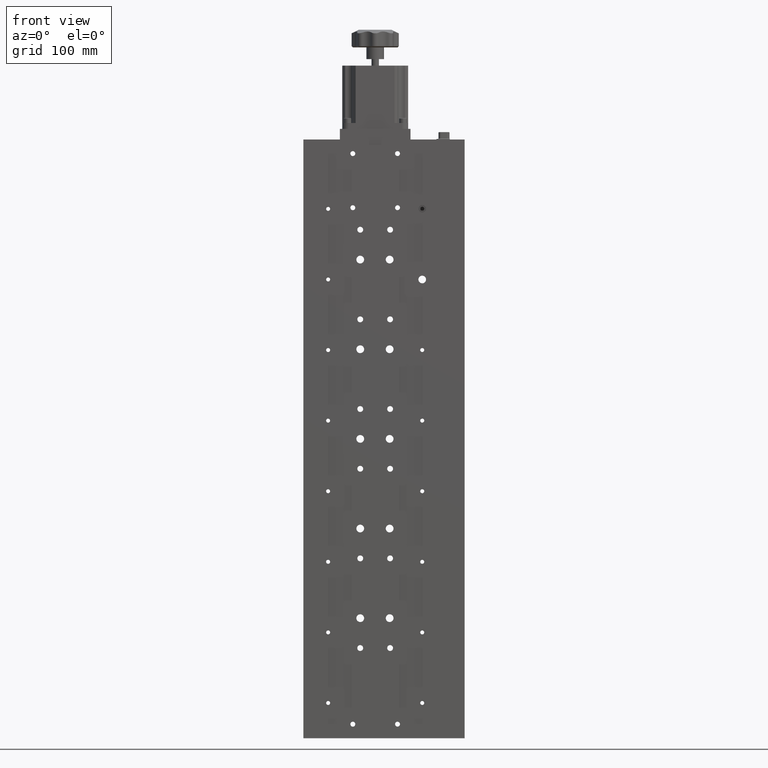
[diagram: clean part render]
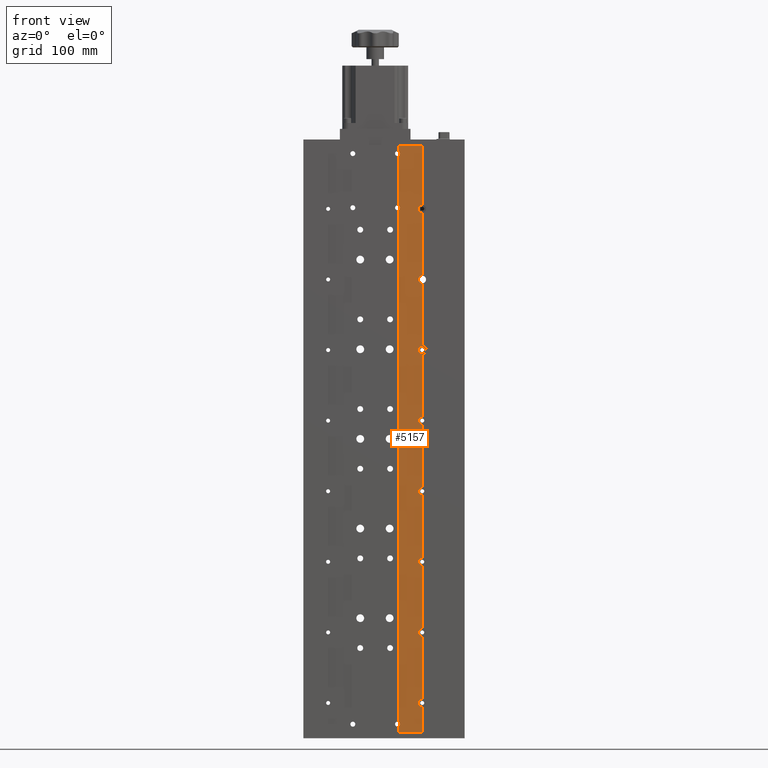
[diagram: same view with one face highlighted and labeled with its STEP entity id]
A machine part, front view. The second image highlights one B-rep face of the part: STEP entity #5157.
In plain terms, the highlighted planar face has unit normal (-0, 1, 0).
Its self-contained STEP definition (entity closure, byte-faithful):
#75 = ORIENTED_EDGE ( 'NONE', *, *, #36849, .T. ) ;
#194 = ORIENTED_EDGE ( 'NONE', *, *, #3482, .F. ) ;
#891 = CARTESIAN_POINT ( 'NONE',  ( 29.38919164396006100, -8.917650620647958000, 192.2500000000000000 ) ) ;
#1083 = DIRECTION ( 'NONE',  ( 0.0000000000000000000, 0.0000000000000000000, -1.000000000000000000 ) ) ;
#1180 = EDGE_CURVE ( 'NONE', #26167, #33218, #40847, .T. ) ;
#1294 = DIRECTION ( 'NONE',  ( 0.0000000000000000000, 0.0000000000000000000, -1.000000000000000000 ) ) ;
#1434 = ORIENTED_EDGE ( 'NONE', *, *, #11264, .T. ) ;
#1570 = EDGE_CURVE ( 'NONE', #35505, #6828, #2548, .T. ) ;
#1645 = ORIENTED_EDGE ( 'NONE', *, *, #17003, .F. ) ;
#1783 = VERTEX_POINT ( 'NONE', #25481 ) ;
#2277 = DIRECTION ( 'NONE',  ( -3.689503073101875900E-032, 1.000000000000000000, 0.0000000000000000000 ) ) ;
#2376 = DIRECTION ( 'NONE',  ( -3.689503073101875900E-032, 1.000000000000000000, 0.0000000000000000000 ) ) ;
#2548 = LINE ( 'NONE', #30885, #18909 ) ;
#2803 = DIRECTION ( 'NONE',  ( 0.0000000000000000000, 0.0000000000000000000, 1.000000000000000000 ) ) ;
#2807 = CARTESIAN_POINT ( 'NONE',  ( 29.38919164396006100, -8.917650620647959800, 249.5000000000000300 ) ) ;
#2820 = EDGE_CURVE ( 'NONE', #1783, #13179, #15696, .T. ) ;
#2909 = VERTEX_POINT ( 'NONE', #11464 ) ;
#2936 = CARTESIAN_POINT ( 'NONE',  ( 29.38919164395998600, -8.917650620647958000, 75.50000000000001400 ) ) ;
#3055 = CARTESIAN_POINT ( 'NONE',  ( 9.389191643960058900, -8.917650620647958000, 198.3466185312619800 ) ) ;
#3223 = CARTESIAN_POINT ( 'NONE',  ( 29.38919164396006100, -8.917650620647959800, 249.5000000000000300 ) ) ;
#3258 = CARTESIAN_POINT ( 'NONE',  ( 9.389191643960058900, -8.917650620647958000, 249.5000000000000600 ) ) ;
#3290 = VECTOR ( 'NONE', #39879, 1000.000000000000000 ) ;
#3482 = EDGE_CURVE ( 'NONE', #19112, #26167, #7911, .T. ) ;
#3705 = VECTOR ( 'NONE', #24495, 1000.000000000000000 ) ;
#3825 = PLANE ( 'NONE',  #12583 ) ;
#3964 = DIRECTION ( 'NONE',  ( -3.689503073101875900E-032, 1.000000000000000000, 0.0000000000000000000 ) ) ;
#4069 = AXIS2_PLACEMENT_3D ( 'NONE', #28992, #9453, #32235 ) ;
#4443 = CARTESIAN_POINT ( 'NONE',  ( 29.38919164396006100, -8.917650620647959800, 249.5000000000000300 ) ) ;
#4954 = DIRECTION ( 'NONE',  ( 0.0000000000000000000, 0.0000000000000000000, -1.000000000000000000 ) ) ;
#5101 = VECTOR ( 'NONE', #6492, 1000.000000000000000 ) ;
#5157 = ADVANCED_FACE ( 'NONE', ( #20844 ), #3825, .F. ) ;
#5226 = CARTESIAN_POINT ( 'NONE',  ( 29.38919164395998600, -8.917650620647958000, 135.5000000000000000 ) ) ;
#5464 = CARTESIAN_POINT ( 'NONE',  ( 9.389191643960062400, -8.917650620647958000, 244.3466185312619500 ) ) ;
#5482 = LINE ( 'NONE', #17381, #13140 ) ;
#5791 = DIRECTION ( 'NONE',  ( -3.689503073101875900E-032, 1.000000000000000000, 0.0000000000000000000 ) ) ;
#6129 = VERTEX_POINT ( 'NONE', #38226 ) ;
#6207 = DIRECTION ( 'NONE',  ( 0.0000000000000000000, 0.0000000000000000000, 1.000000000000000000 ) ) ;
#6490 = VERTEX_POINT ( 'NONE', #28863 ) ;
#6492 = DIRECTION ( 'NONE',  ( 0.0000000000000000000, 0.0000000000000000000, -1.000000000000000000 ) ) ;
#6828 = VERTEX_POINT ( 'NONE', #40754 ) ;
#7020 = AXIS2_PLACEMENT_3D ( 'NONE', #35965, #16486, #39246 ) ;
#7460 = ORIENTED_EDGE ( 'NONE', *, *, #2820, .T. ) ;
#7721 = CARTESIAN_POINT ( 'NONE',  ( -50.61080835603993900, -8.917650620647958000, -249.4999999999999700 ) ) ;
#7911 = LINE ( 'NONE', #26402, #15617 ) ;
#8202 = DIRECTION ( 'NONE',  ( 0.0000000000000000000, 0.0000000000000000000, -1.000000000000000000 ) ) ;
#8254 = VERTEX_POINT ( 'NONE', #30534 ) ;
#8263 = CARTESIAN_POINT ( 'NONE',  ( 29.38919164395998600, -8.917650620647959800, -44.49999999999999300 ) ) ;
#8497 = DIRECTION ( 'NONE',  ( 0.0000000000000000000, 0.0000000000000000000, 1.000000000000000000 ) ) ;
#8522 = LINE ( 'NONE', #41137, #16219 ) ;
#8606 = CIRCLE ( 'NONE', #22244, 2.099999999999990800 ) ;
#8871 = DIRECTION ( 'NONE',  ( 0.0000000000000000000, 0.0000000000000000000, 1.000000000000000000 ) ) ;
#9453 = DIRECTION ( 'NONE',  ( -3.689503073101875900E-032, 1.000000000000000000, 0.0000000000000000000 ) ) ;
#9624 = VECTOR ( 'NONE', #8871, 1000.000000000000000 ) ;
#10143 = DIRECTION ( 'NONE',  ( 1.000000000000000000, -3.689503073101735200E-032, 0.0000000000000000000 ) ) ;
#10581 = ORIENTED_EDGE ( 'NONE', *, *, #40405, .T. ) ;
#11264 = EDGE_CURVE ( 'NONE', #20368, #6828, #22625, .T. ) ;
#11464 = CARTESIAN_POINT ( 'NONE',  ( 29.38919164396006100, -8.917650620647959800, 132.2500000000000000 ) ) ;
#11581 = DIRECTION ( 'NONE',  ( 0.0000000000000000000, 0.0000000000000000000, 1.000000000000000000 ) ) ;
#11874 = ORIENTED_EDGE ( 'NONE', *, *, #1570, .F. ) ;
#12076 = VECTOR ( 'NONE', #41665, 1000.000000000000000 ) ;
#12146 = CARTESIAN_POINT ( 'NONE',  ( 29.38919164395998600, -8.917650620647959800, -224.4999999999999700 ) ) ;
#12450 = CARTESIAN_POINT ( 'NONE',  ( 29.38919164396006100, -8.917650620647959800, 249.5000000000000300 ) ) ;
#12583 = AXIS2_PLACEMENT_3D ( 'NONE', #23511, #3964, #26783 ) ;
#12764 = LINE ( 'NONE', #3223, #5101 ) ;
#12795 = CARTESIAN_POINT ( 'NONE',  ( 29.38919164396006100, -8.917650620647959800, -161.2499999999999700 ) ) ;
#12819 = VERTEX_POINT ( 'NONE', #42074 ) ;
#12880 = CARTESIAN_POINT ( 'NONE',  ( 29.38919164396006100, -8.917650620647959800, 249.5000000000000300 ) ) ;
#12913 = CARTESIAN_POINT ( 'NONE',  ( 29.38919164396006100, -8.917650620647958000, 12.25000000000001600 ) ) ;
#13140 = VECTOR ( 'NONE', #1083, 1000.000000000000000 ) ;
#13176 = LINE ( 'NONE', #12450, #29494 ) ;
#13179 = VERTEX_POINT ( 'NONE', #31072 ) ;
#13372 = AXIS2_PLACEMENT_3D ( 'NONE', #2936, #25742, #6207 ) ;
#13868 = VERTEX_POINT ( 'NONE', #5464 ) ;
#13947 = CARTESIAN_POINT ( 'NONE',  ( 29.38919164396006100, -8.917650620647959800, -101.2499999999999900 ) ) ;
#14133 = CARTESIAN_POINT ( 'NONE',  ( 29.38919164396006100, -8.917650620647959800, 198.7500000000000000 ) ) ;
#14217 = CARTESIAN_POINT ( 'NONE',  ( 8.389191643960057100, -8.917650620647959800, 196.5000000000000300 ) ) ;
#15164 = AXIS2_PLACEMENT_3D ( 'NONE', #12146, #34938, #15449 ) ;
#15423 = VERTEX_POINT ( 'NONE', #35398 ) ;
#15449 = DIRECTION ( 'NONE',  ( 0.0000000000000000000, 0.0000000000000000000, 1.000000000000000000 ) ) ;
#15617 = VECTOR ( 'NONE', #10143, 1000.000000000000000 ) ;
#15629 = VERTEX_POINT ( 'NONE', #30237 ) ;
#15649 = VERTEX_POINT ( 'NONE', #26971 ) ;
#15696 = LINE ( 'NONE', #7721, #24346 ) ;
#15892 = CARTESIAN_POINT ( 'NONE',  ( 29.38919164396006100, -8.917650620647958000, -47.74999999999998600 ) ) ;
#15971 = ORIENTED_EDGE ( 'NONE', *, *, #1180, .F. ) ;
#16219 = VECTOR ( 'NONE', #18406, 1000.000000000000000 ) ;
#16225 = VERTEX_POINT ( 'NONE', #13947 ) ;
#16375 = CIRCLE ( 'NONE', #24504, 3.250000000000002700 ) ;
#16481 = EDGE_CURVE ( 'NONE', #37645, #33218, #16375, .T. ) ;
#16486 = DIRECTION ( 'NONE',  ( -3.689503073101875900E-032, 1.000000000000000000, 0.0000000000000000000 ) ) ;
#16527 = EDGE_CURVE ( 'NONE', #12819, #16225, #20956, .T. ) ;
#16583 = EDGE_CURVE ( 'NONE', #22617, #13179, #12764, .T. ) ;
#16662 = VECTOR ( 'NONE', #1294, 1000.000000000000000 ) ;
#17003 = EDGE_CURVE ( 'NONE', #1783, #15649, #35614, .T. ) ;
#17072 = EDGE_CURVE ( 'NONE', #15423, #33042, #13176, .T. ) ;
#17116 = CARTESIAN_POINT ( 'NONE',  ( 9.389191643960058900, -8.917650620647958000, -289.5780488547034100 ) ) ;
#17341 = EDGE_CURVE ( 'NONE', #26721, #15629, #39835, .T. ) ;
#17381 = CARTESIAN_POINT ( 'NONE',  ( 29.38919164396006100, -8.917650620647959800, 249.5000000000000300 ) ) ;
#17504 = DIRECTION ( 'NONE',  ( 0.0000000000000000000, 0.0000000000000000000, 1.000000000000000000 ) ) ;
#17977 = EDGE_CURVE ( 'NONE', #35505, #31364, #20363, .T. ) ;
#18406 = DIRECTION ( 'NONE',  ( 0.0000000000000000000, 0.0000000000000000000, -1.000000000000000000 ) ) ;
#18909 = VECTOR ( 'NONE', #4954, 1000.000000000000000 ) ;
#19112 = VERTEX_POINT ( 'NONE', #3258 ) ;
#20045 = ORIENTED_EDGE ( 'NONE', *, *, #23065, .T. ) ;
#20064 = EDGE_CURVE ( 'NONE', #6129, #8254, #28743, .T. ) ;
#20127 = EDGE_CURVE ( 'NONE', #2909, #36974, #36326, .T. ) ;
#20363 = CIRCLE ( 'NONE', #13372, 3.250000000000002700 ) ;
#20368 = VERTEX_POINT ( 'NONE', #12913 ) ;
#20754 = LINE ( 'NONE', #25307, #12076 ) ;
#20844 = FACE_OUTER_BOUND ( 'NONE', #24816, .T. ) ;
#20951 = EDGE_CURVE ( 'NONE', #2909, #31364, #26342, .T. ) ;
#20956 = CIRCLE ( 'NONE', #37583, 3.250000000000002700 ) ;
#20994 = ORIENTED_EDGE ( 'NONE', *, *, #16583, .F. ) ;
#21482 = ORIENTED_EDGE ( 'NONE', *, *, #20127, .T. ) ;
#21829 = CARTESIAN_POINT ( 'NONE',  ( 29.38919164395998600, -8.917650620647958000, -164.4999999999999700 ) ) ;
#21940 = CARTESIAN_POINT ( 'NONE',  ( 8.389191643960060700, -8.917650620647958000, -242.4999999999999700 ) ) ;
#22007 = ORIENTED_EDGE ( 'NONE', *, *, #27490, .F. ) ;
#22244 = AXIS2_PLACEMENT_3D ( 'NONE', #21940, #2376, #25180 ) ;
#22364 = DIRECTION ( 'NONE',  ( -3.689503073101875900E-032, 1.000000000000000000, 0.0000000000000000000 ) ) ;
#22617 = VERTEX_POINT ( 'NONE', #23279 ) ;
#22625 = CIRCLE ( 'NONE', #4069, 3.250000000000001300 ) ;
#23065 = EDGE_CURVE ( 'NONE', #6129, #15649, #8606, .T. ) ;
#23279 = CARTESIAN_POINT ( 'NONE',  ( 29.38919164396006100, -8.917650620647958000, -227.7499999999998600 ) ) ;
#23467 = ORIENTED_EDGE ( 'NONE', *, *, #29198, .T. ) ;
#23511 = CARTESIAN_POINT ( 'NONE',  ( -50.61080835603993900, -8.917650620647959800, 249.5000000000000300 ) ) ;
#23857 = AXIS2_PLACEMENT_3D ( 'NONE', #14217, #36985, #17504 ) ;
#24346 = VECTOR ( 'NONE', #27276, 1000.000000000000000 ) ;
#24495 = DIRECTION ( 'NONE',  ( 0.0000000000000000000, 0.0000000000000000000, 1.000000000000000000 ) ) ;
#24504 = AXIS2_PLACEMENT_3D ( 'NONE', #25346, #5791, #28628 ) ;
#24816 = EDGE_LOOP ( 'NONE', ( #22007, #31711, #15971, #194, #31767, #42275, #39370, #10581, #34614, #20045, #1645, #7460, #20994, #23467, #40878, #75, #34377, #32266, #35138, #40887, #36017, #1434, #11874, #28189, #33969, #21482 ) ) ;
#25079 = DIRECTION ( 'NONE',  ( 0.0000000000000000000, 0.0000000000000000000, 1.000000000000000000 ) ) ;
#25143 = CARTESIAN_POINT ( 'NONE',  ( 9.389191643960058900, -8.917650620647958000, -289.5780488547034100 ) ) ;
#25180 = DIRECTION ( 'NONE',  ( 0.0000000000000000000, 0.0000000000000000000, 1.000000000000000000 ) ) ;
#25307 = CARTESIAN_POINT ( 'NONE',  ( 9.389191643960058900, -8.917650620647958000, -289.5780488547034100 ) ) ;
#25346 = CARTESIAN_POINT ( 'NONE',  ( 29.38919164395998600, -8.917650620647959800, 195.5000000000000000 ) ) ;
#25481 = CARTESIAN_POINT ( 'NONE',  ( 9.389191643960062400, -8.917650620647958000, -249.4999999999999400 ) ) ;
#25742 = DIRECTION ( 'NONE',  ( -3.689503073101875900E-032, 1.000000000000000000, 0.0000000000000000000 ) ) ;
#25783 = CARTESIAN_POINT ( 'NONE',  ( 29.38919164396006100, -8.917650620647959800, 138.7500000000000000 ) ) ;
#26000 = EDGE_CURVE ( 'NONE', #26721, #16225, #29738, .T. ) ;
#26167 = VERTEX_POINT ( 'NONE', #2807 ) ;
#26342 = LINE ( 'NONE', #4443, #16662 ) ;
#26402 = CARTESIAN_POINT ( 'NONE',  ( -50.61080835603993900, -8.917650620647959800, 249.5000000000000300 ) ) ;
#26721 = VERTEX_POINT ( 'NONE', #15892 ) ;
#26783 = DIRECTION ( 'NONE',  ( 0.0000000000000000000, 0.0000000000000000000, 1.000000000000000000 ) ) ;
#26971 = CARTESIAN_POINT ( 'NONE',  ( 9.389191643960062400, -8.917650620647958000, -244.3466185312618700 ) ) ;
#27276 = DIRECTION ( 'NONE',  ( 1.000000000000000000, -3.689503073101735200E-032, 0.0000000000000000000 ) ) ;
#27490 = EDGE_CURVE ( 'NONE', #37645, #36974, #5482, .T. ) ;
#27681 = CIRCLE ( 'NONE', #30365, 3.250000000000002700 ) ;
#27785 = CARTESIAN_POINT ( 'NONE',  ( 29.38919164396006100, -8.917650620647959800, 249.5000000000000300 ) ) ;
#28061 = DIRECTION ( 'NONE',  ( -3.689503073101875900E-032, 1.000000000000000000, 0.0000000000000000000 ) ) ;
#28189 = ORIENTED_EDGE ( 'NONE', *, *, #17977, .T. ) ;
#28628 = DIRECTION ( 'NONE',  ( 0.0000000000000000000, 0.0000000000000000000, 1.000000000000000000 ) ) ;
#28737 = VECTOR ( 'NONE', #8202, 1000.000000000000000 ) ;
#28743 = LINE ( 'NONE', #37428, #3705 ) ;
#28863 = CARTESIAN_POINT ( 'NONE',  ( 9.389191643960062400, -8.917650620647959800, 240.6533814687381300 ) ) ;
#28992 = CARTESIAN_POINT ( 'NONE',  ( 29.38919164395998600, -8.917650620647959800, 15.50000000000001600 ) ) ;
#29198 = EDGE_CURVE ( 'NONE', #22617, #33042, #37870, .T. ) ;
#29216 = VECTOR ( 'NONE', #38946, 1000.000000000000000 ) ;
#29494 = VECTOR ( 'NONE', #38652, 1000.000000000000000 ) ;
#29738 = LINE ( 'NONE', #27785, #28737 ) ;
#30213 = LINE ( 'NONE', #12880, #29216 ) ;
#30237 = CARTESIAN_POINT ( 'NONE',  ( 29.38919164396006100, -8.917650620647958000, -41.24999999999999300 ) ) ;
#30270 = EDGE_CURVE ( 'NONE', #13868, #19112, #37954, .T. ) ;
#30365 = AXIS2_PLACEMENT_3D ( 'NONE', #21829, #2277, #25079 ) ;
#30534 = CARTESIAN_POINT ( 'NONE',  ( 9.389191643960062400, -8.917650620647958000, 194.6533814687381300 ) ) ;
#30885 = CARTESIAN_POINT ( 'NONE',  ( 29.38919164396006100, -8.917650620647959800, 249.5000000000000300 ) ) ;
#31072 = CARTESIAN_POINT ( 'NONE',  ( 29.38919164396006100, -8.917650620647958000, -249.4999999999999700 ) ) ;
#31078 = DIRECTION ( 'NONE',  ( -3.689503073101875900E-032, 1.000000000000000000, 0.0000000000000000000 ) ) ;
#31156 = VECTOR ( 'NONE', #38618, 1000.000000000000000 ) ;
#31206 = EDGE_CURVE ( 'NONE', #20368, #15629, #30213, .T. ) ;
#31364 = VERTEX_POINT ( 'NONE', #39924 ) ;
#31711 = ORIENTED_EDGE ( 'NONE', *, *, #16481, .T. ) ;
#31767 = ORIENTED_EDGE ( 'NONE', *, *, #30270, .F. ) ;
#32055 = CARTESIAN_POINT ( 'NONE',  ( 29.38919164396006100, -8.917650620647959800, 249.5000000000000300 ) ) ;
#32234 = EDGE_CURVE ( 'NONE', #12819, #38854, #8522, .T. ) ;
#32235 = DIRECTION ( 'NONE',  ( 0.0000000000000000000, 0.0000000000000000000, 1.000000000000000000 ) ) ;
#32266 = ORIENTED_EDGE ( 'NONE', *, *, #16527, .T. ) ;
#32555 = CIRCLE ( 'NONE', #23857, 2.099999999999990800 ) ;
#32708 = AXIS2_PLACEMENT_3D ( 'NONE', #8263, #31078, #11581 ) ;
#32712 = EDGE_CURVE ( 'NONE', #40813, #6490, #20754, .T. ) ;
#33042 = VERTEX_POINT ( 'NONE', #38482 ) ;
#33218 = VERTEX_POINT ( 'NONE', #14133 ) ;
#33969 = ORIENTED_EDGE ( 'NONE', *, *, #20951, .F. ) ;
#34153 = EDGE_CURVE ( 'NONE', #13868, #6490, #35211, .T. ) ;
#34377 = ORIENTED_EDGE ( 'NONE', *, *, #32234, .F. ) ;
#34614 = ORIENTED_EDGE ( 'NONE', *, *, #20064, .F. ) ;
#34938 = DIRECTION ( 'NONE',  ( -3.689503073101875900E-032, 1.000000000000000000, 0.0000000000000000000 ) ) ;
#35138 = ORIENTED_EDGE ( 'NONE', *, *, #26000, .F. ) ;
#35211 = CIRCLE ( 'NONE', #7020, 2.099999999999990800 ) ;
#35398 = CARTESIAN_POINT ( 'NONE',  ( 29.38919164396006100, -8.917650620647959800, -167.7499999999998600 ) ) ;
#35505 = VERTEX_POINT ( 'NONE', #36288 ) ;
#35614 = LINE ( 'NONE', #25143, #9624 ) ;
#35965 = CARTESIAN_POINT ( 'NONE',  ( 8.389191643960057100, -8.917650620647958000, 242.5000000000000300 ) ) ;
#36017 = ORIENTED_EDGE ( 'NONE', *, *, #31206, .F. ) ;
#36288 = CARTESIAN_POINT ( 'NONE',  ( 29.38919164396006100, -8.917650620647959800, 72.25000000000001400 ) ) ;
#36326 = CIRCLE ( 'NONE', #38345, 3.250000000000002700 ) ;
#36849 = EDGE_CURVE ( 'NONE', #15423, #38854, #27681, .T. ) ;
#36974 = VERTEX_POINT ( 'NONE', #25783 ) ;
#36985 = DIRECTION ( 'NONE',  ( -3.689503073101875900E-032, 1.000000000000000000, 0.0000000000000000000 ) ) ;
#37428 = CARTESIAN_POINT ( 'NONE',  ( 9.389191643960058900, -8.917650620647958000, -289.5780488547034100 ) ) ;
#37583 = AXIS2_PLACEMENT_3D ( 'NONE', #41827, #22364, #2803 ) ;
#37645 = VERTEX_POINT ( 'NONE', #891 ) ;
#37870 = CIRCLE ( 'NONE', #15164, 3.250000000000002700 ) ;
#37954 = LINE ( 'NONE', #17116, #3290 ) ;
#38226 = CARTESIAN_POINT ( 'NONE',  ( 9.389191643960062400, -8.917650620647958000, -240.6533814687380200 ) ) ;
#38345 = AXIS2_PLACEMENT_3D ( 'NONE', #5226, #28061, #8497 ) ;
#38482 = CARTESIAN_POINT ( 'NONE',  ( 29.38919164396006100, -8.917650620647958000, -221.2499999999999700 ) ) ;
#38618 = DIRECTION ( 'NONE',  ( 0.0000000000000000000, 0.0000000000000000000, -1.000000000000000000 ) ) ;
#38652 = DIRECTION ( 'NONE',  ( 0.0000000000000000000, 0.0000000000000000000, -1.000000000000000000 ) ) ;
#38854 = VERTEX_POINT ( 'NONE', #12795 ) ;
#38946 = DIRECTION ( 'NONE',  ( 0.0000000000000000000, 0.0000000000000000000, -1.000000000000000000 ) ) ;
#39246 = DIRECTION ( 'NONE',  ( 0.0000000000000000000, 0.0000000000000000000, 1.000000000000000000 ) ) ;
#39370 = ORIENTED_EDGE ( 'NONE', *, *, #32712, .F. ) ;
#39835 = CIRCLE ( 'NONE', #32708, 3.249999999999996000 ) ;
#39879 = DIRECTION ( 'NONE',  ( 0.0000000000000000000, 0.0000000000000000000, 1.000000000000000000 ) ) ;
#39924 = CARTESIAN_POINT ( 'NONE',  ( 29.38919164396006100, -8.917650620647958000, 78.75000000000001400 ) ) ;
#40405 = EDGE_CURVE ( 'NONE', #40813, #8254, #32555, .T. ) ;
#40754 = CARTESIAN_POINT ( 'NONE',  ( 29.38919164396006100, -8.917650620647958000, 18.75000000000001400 ) ) ;
#40813 = VERTEX_POINT ( 'NONE', #3055 ) ;
#40847 = LINE ( 'NONE', #32055, #31156 ) ;
#40878 = ORIENTED_EDGE ( 'NONE', *, *, #17072, .F. ) ;
#40887 = ORIENTED_EDGE ( 'NONE', *, *, #17341, .T. ) ;
#41137 = CARTESIAN_POINT ( 'NONE',  ( 29.38919164396006100, -8.917650620647959800, 249.5000000000000300 ) ) ;
#41665 = DIRECTION ( 'NONE',  ( 0.0000000000000000000, 0.0000000000000000000, 1.000000000000000000 ) ) ;
#41827 = CARTESIAN_POINT ( 'NONE',  ( 29.38919164395998600, -8.917650620647958000, -104.4999999999999900 ) ) ;
#42074 = CARTESIAN_POINT ( 'NONE',  ( 29.38919164396006100, -8.917650620647959800, -107.7499999999999900 ) ) ;
#42275 = ORIENTED_EDGE ( 'NONE', *, *, #34153, .T. ) ;